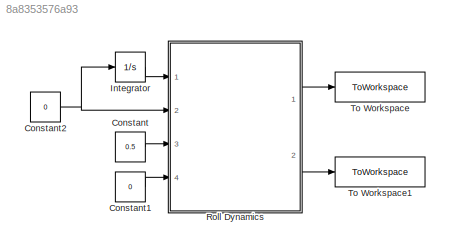
MODEL slx_8a8353576a93
KIND model
CONFIG AbsTol = auto
CONFIG EnableMultiTasking = off
CONFIG FixedStep = auto
CONFIG MaxStep = auto
CONFIG MinStep = auto
CONFIG RelTol = 1e-3
CONFIG SampleTimeConstraint = Unconstrained
CONFIG Solver = VariableStepAuto
CONFIG SolverName = VariableStepAuto
CONFIG StartTime = 0.0
CONFIG StopTime = 10.0
BLOCK [Constant] Constant
  Value = 0.5
BLOCK [Constant] Constant1
  Value = 0
BLOCK [Constant] Constant2
  Value = 0
BLOCK [Integrator] Integrator
  Ports = [1, 1]
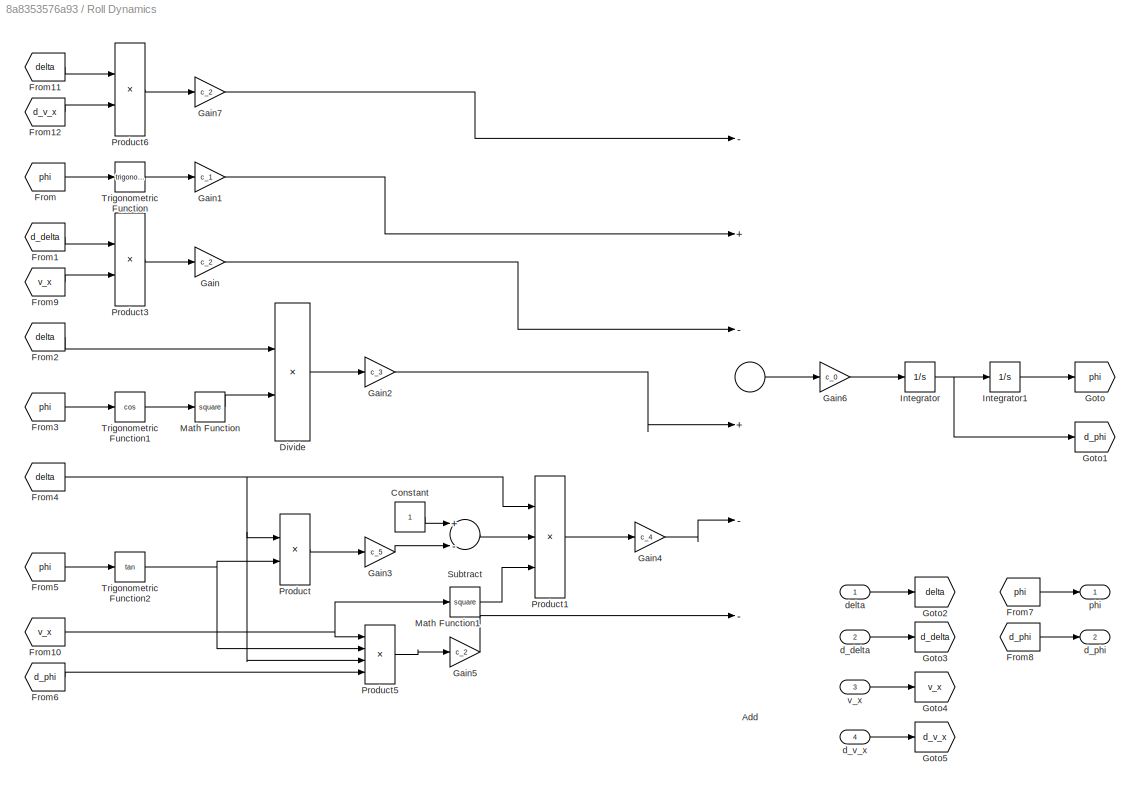
BLOCK [SubSystem] Roll Dynamics
  Ports = [4, 2]
  RequestExecContextInheritance = off
BLOCK [Sum] Roll Dynamics/Add
  InputSameDT = off
  Inputs = -+-+--
  OutDataTypeStr = Inherit: Inherit via internal rule
  Ports = [6, 1]
  SaturateOnIntegerOverflow = off
BLOCK [Constant] Roll Dynamics/Constant
BLOCK [Product] Roll Dynamics/Divide
  InputSameDT = off
  Inputs = */
  OutDataTypeStr = Inherit: Inherit via internal rule
  Ports = [2, 1]
  RndMeth = Floor
  SaturateOnIntegerOverflow = off
BLOCK [From] Roll Dynamics/From
  GotoTag = phi
BLOCK [From] Roll Dynamics/From1
  GotoTag = d_delta
BLOCK [From] Roll Dynamics/From10
  GotoTag = v_x
BLOCK [From] Roll Dynamics/From11
  GotoTag = delta
BLOCK [From] Roll Dynamics/From12
  GotoTag = d_v_x
BLOCK [From] Roll Dynamics/From2
  GotoTag = delta
BLOCK [From] Roll Dynamics/From3
  GotoTag = phi
BLOCK [From] Roll Dynamics/From4
  GotoTag = delta
BLOCK [From] Roll Dynamics/From5
  GotoTag = phi
BLOCK [From] Roll Dynamics/From6
  GotoTag = d_phi
BLOCK [From] Roll Dynamics/From7
  GotoTag = phi
BLOCK [From] Roll Dynamics/From8
  GotoTag = d_phi
BLOCK [From] Roll Dynamics/From9
  GotoTag = v_x
BLOCK [Gain] Roll Dynamics/Gain
  Gain = c_2
  OutDataTypeStr = Inherit: Inherit via internal rule
  ParamDataTypeStr = Inherit: Inherit via internal rule
  SaturateOnIntegerOverflow = off
BLOCK [Gain] Roll Dynamics/Gain1
  Gain = c_1
  OutDataTypeStr = Inherit: Inherit via internal rule
  ParamDataTypeStr = Inherit: Inherit via internal rule
  SaturateOnIntegerOverflow = off
BLOCK [Gain] Roll Dynamics/Gain2
  Gain = c_3
  OutDataTypeStr = Inherit: Inherit via internal rule
  ParamDataTypeStr = Inherit: Inherit via internal rule
  SaturateOnIntegerOverflow = off
BLOCK [Gain] Roll Dynamics/Gain3
  Gain = c_5
  OutDataTypeStr = Inherit: Inherit via internal rule
  ParamDataTypeStr = Inherit: Inherit via internal rule
  SaturateOnIntegerOverflow = off
BLOCK [Gain] Roll Dynamics/Gain4
  Gain = c_4
  OutDataTypeStr = Inherit: Inherit via internal rule
  ParamDataTypeStr = Inherit: Inherit via internal rule
  SaturateOnIntegerOverflow = off
BLOCK [Gain] Roll Dynamics/Gain5
  Gain = c_2
  OutDataTypeStr = Inherit: Inherit via internal rule
  ParamDataTypeStr = Inherit: Inherit via internal rule
  SaturateOnIntegerOverflow = off
BLOCK [Gain] Roll Dynamics/Gain6
  Gain = c_0
  OutDataTypeStr = Inherit: Inherit via internal rule
  ParamDataTypeStr = Inherit: Inherit via internal rule
  SaturateOnIntegerOverflow = off
BLOCK [Gain] Roll Dynamics/Gain7
  Gain = c_2
  OutDataTypeStr = Inherit: Inherit via internal rule
  ParamDataTypeStr = Inherit: Inherit via internal rule
  SaturateOnIntegerOverflow = off
BLOCK [Goto] Roll Dynamics/Goto
  GotoTag = phi
BLOCK [Goto] Roll Dynamics/Goto1
  GotoTag = d_phi
BLOCK [Goto] Roll Dynamics/Goto2
  GotoTag = delta
BLOCK [Goto] Roll Dynamics/Goto3
  GotoTag = d_delta
BLOCK [Goto] Roll Dynamics/Goto4
  GotoTag = v_x
BLOCK [Goto] Roll Dynamics/Goto5
  GotoTag = d_v_x
BLOCK [Integrator] Roll Dynamics/Integrator
  Ports = [1, 1]
BLOCK [Integrator] Roll Dynamics/Integrator1
  Ports = [1, 1]
BLOCK [Math] Roll Dynamics/Math Function
  Operator = square
  Ports = [1, 1]
BLOCK [Math] Roll Dynamics/Math Function1
  Operator = square
  Ports = [1, 1]
BLOCK [Product] Roll Dynamics/Product
  InputSameDT = off
  OutDataTypeStr = Inherit: Inherit via internal rule
  Ports = [2, 1]
  RndMeth = Floor
  SaturateOnIntegerOverflow = off
BLOCK [Product] Roll Dynamics/Product1
  InputSameDT = off
  Inputs = 3
  OutDataTypeStr = Inherit: Inherit via internal rule
  Ports = [3, 1]
  RndMeth = Floor
  SaturateOnIntegerOverflow = off
BLOCK [Product] Roll Dynamics/Product3
  InputSameDT = off
  OutDataTypeStr = Inherit: Inherit via internal rule
  Ports = [2, 1]
  RndMeth = Floor
  SaturateOnIntegerOverflow = off
BLOCK [Product] Roll Dynamics/Product5
  InputSameDT = off
  Inputs = 4
  OutDataTypeStr = Inherit: Inherit via internal rule
  Ports = [4, 1]
  RndMeth = Floor
  SaturateOnIntegerOverflow = off
BLOCK [Product] Roll Dynamics/Product6
  InputSameDT = off
  OutDataTypeStr = Inherit: Inherit via internal rule
  Ports = [2, 1]
  RndMeth = Floor
  SaturateOnIntegerOverflow = off
BLOCK [Sum] Roll Dynamics/Subtract
  InputSameDT = off
  Inputs = +-
  OutDataTypeStr = Inherit: Inherit via internal rule
  Ports = [2, 1]
  SaturateOnIntegerOverflow = off
BLOCK [Trigonometry] Roll Dynamics/Trigonometric Function
  Ports = [1, 1]
BLOCK [Trigonometry] Roll Dynamics/Trigonometric Function1
  Operator = cos
  Ports = [1, 1]
BLOCK [Trigonometry] Roll Dynamics/Trigonometric Function2
  Operator = tan
  Ports = [1, 1]
BLOCK [Inport] Roll Dynamics/d_delta
  IconDisplay = Port number
  Port = 2
BLOCK [Outport] Roll Dynamics/d_phi
  IconDisplay = Port number
  Port = 2
  VectorParamsAs1DForOutWhenUnconnected = off
BLOCK [Inport] Roll Dynamics/d_v_x
  IconDisplay = Port number
  Port = 4
BLOCK [Inport] Roll Dynamics/delta
  IconDisplay = Port number
BLOCK [Outport] Roll Dynamics/phi
  IconDisplay = Port number
  VectorParamsAs1DForOutWhenUnconnected = off
BLOCK [Inport] Roll Dynamics/v_x
  IconDisplay = Port number
  Port = 3
BLOCK [ToWorkspace] To Workspace
  FixptAsFi = on
  MaxDataPoints = inf
  Ports = [1]
  SampleTime = -1
  VariableName = phi
BLOCK [ToWorkspace] To Workspace1
  FixptAsFi = on
  MaxDataPoints = inf
  Ports = [1]
  SampleTime = -1
  VariableName = d_phi
LINE Constant1:1 -> Roll Dynamics:4
NET Constant2:1 -> Integrator:1, Roll Dynamics:2
LINE Constant:1 -> Roll Dynamics:3
LINE Integrator:1 -> Roll Dynamics:1
LINE Roll Dynamics/Add:1 -> Roll Dynamics/Gain6:1
LINE Roll Dynamics/Constant:1 -> Roll Dynamics/Subtract:1
LINE Roll Dynamics/Divide:1 -> Roll Dynamics/Gain2:1
NET Roll Dynamics/From10:1 -> Roll Dynamics/Math Function1:1, Roll Dynamics/Product5:1
LINE Roll Dynamics/From11:1 -> Roll Dynamics/Product6:1
LINE Roll Dynamics/From12:1 -> Roll Dynamics/Product6:2
LINE Roll Dynamics/From1:1 -> Roll Dynamics/Product3:1
LINE Roll Dynamics/From2:1 -> Roll Dynamics/Divide:1
LINE Roll Dynamics/From3:1 -> Roll Dynamics/Trigonometric Function1:1
NET Roll Dynamics/From4:1 -> Roll Dynamics/Product1:1, Roll Dynamics/Product5:3, Roll Dynamics/Product:1
LINE Roll Dynamics/From5:1 -> Roll Dynamics/Trigonometric Function2:1
LINE Roll Dynamics/From6:1 -> Roll Dynamics/Product5:4
LINE Roll Dynamics/From7:1 -> Roll Dynamics/phi:1
LINE Roll Dynamics/From8:1 -> Roll Dynamics/d_phi:1
LINE Roll Dynamics/From9:1 -> Roll Dynamics/Product3:2
LINE Roll Dynamics/From:1 -> Roll Dynamics/Trigonometric Function:1
LINE Roll Dynamics/Gain1:1 -> Roll Dynamics/Add:2
LINE Roll Dynamics/Gain2:1 -> Roll Dynamics/Add:4
LINE Roll Dynamics/Gain3:1 -> Roll Dynamics/Subtract:2
LINE Roll Dynamics/Gain4:1 -> Roll Dynamics/Add:5
LINE Roll Dynamics/Gain5:1 -> Roll Dynamics/Add:6
LINE Roll Dynamics/Gain6:1 -> Roll Dynamics/Integrator:1
LINE Roll Dynamics/Gain7:1 -> Roll Dynamics/Add:1
LINE Roll Dynamics/Gain:1 -> Roll Dynamics/Add:3
LINE Roll Dynamics/Integrator1:1 -> Roll Dynamics/Goto:1
NET Roll Dynamics/Integrator:1 -> Roll Dynamics/Goto1:1, Roll Dynamics/Integrator1:1
LINE Roll Dynamics/Math Function1:1 -> Roll Dynamics/Product1:3
LINE Roll Dynamics/Math Function:1 -> Roll Dynamics/Divide:2
LINE Roll Dynamics/Product1:1 -> Roll Dynamics/Gain4:1
LINE Roll Dynamics/Product3:1 -> Roll Dynamics/Gain:1
LINE Roll Dynamics/Product5:1 -> Roll Dynamics/Gain5:1
LINE Roll Dynamics/Product6:1 -> Roll Dynamics/Gain7:1
LINE Roll Dynamics/Product:1 -> Roll Dynamics/Gain3:1
LINE Roll Dynamics/Subtract:1 -> Roll Dynamics/Product1:2
LINE Roll Dynamics/Trigonometric Function1:1 -> Roll Dynamics/Math Function:1
NET Roll Dynamics/Trigonometric Function2:1 -> Roll Dynamics/Product5:2, Roll Dynamics/Product:2
LINE Roll Dynamics/Trigonometric Function:1 -> Roll Dynamics/Gain1:1
LINE Roll Dynamics/d_delta:1 -> Roll Dynamics/Goto3:1
LINE Roll Dynamics/d_v_x:1 -> Roll Dynamics/Goto5:1
LINE Roll Dynamics/delta:1 -> Roll Dynamics/Goto2:1
LINE Roll Dynamics/v_x:1 -> Roll Dynamics/Goto4:1
LINE Roll Dynamics:1 -> To Workspace:1
LINE Roll Dynamics:2 -> To Workspace1:1
note: NET lines group one-source signal fan-out (src -> all destinations, sorted); 1:1 wires keep LINE
